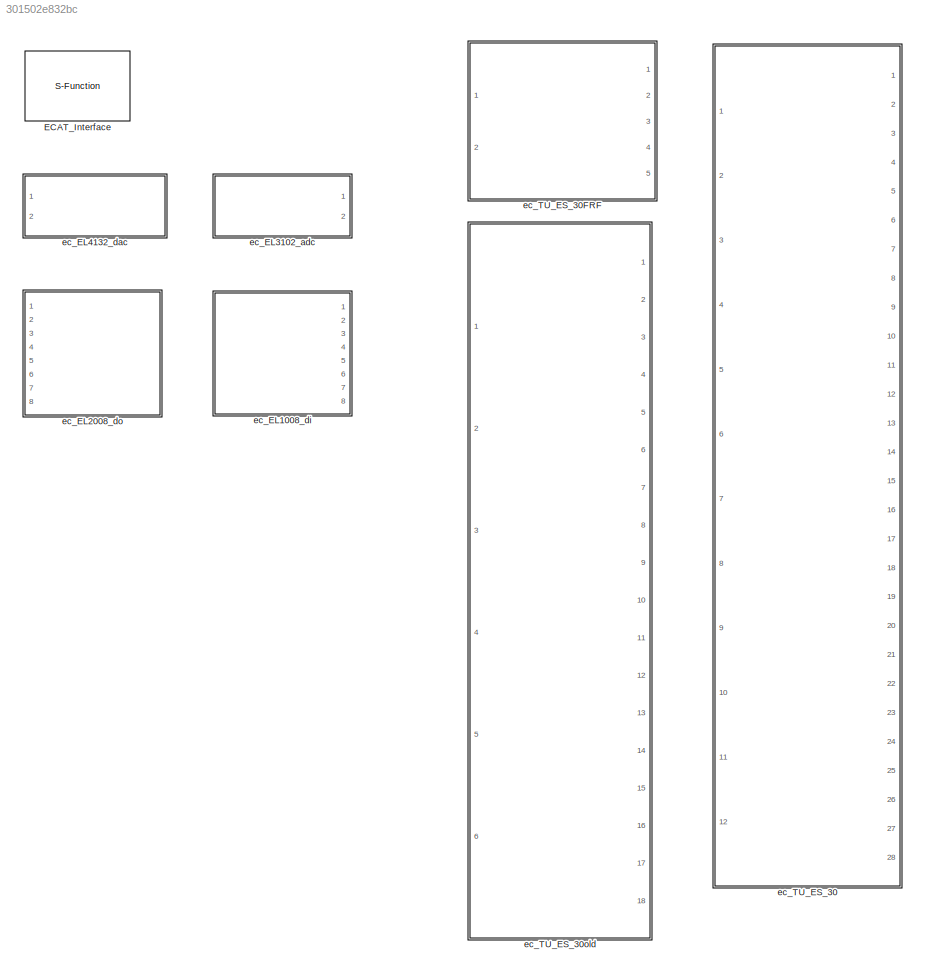
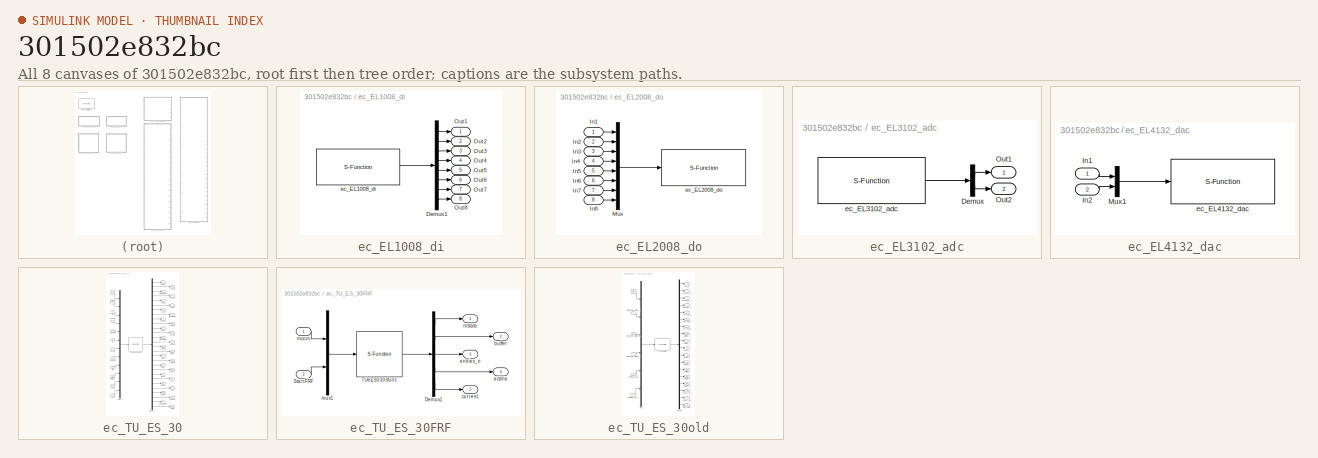
[diagram: thumbnail index - all 8 canvases of the model, root first then tree order]
MODEL slx_301502e832bc
KIND library
CONFIG AbsTol = auto
CONFIG EnableMultiTasking = on
CONFIG FixedStep = auto
CONFIG MaxStep = auto
CONFIG MinStep = auto
CONFIG RelTol = 1e-3
CONFIG SampleTimeConstraint = Unconstrained
CONFIG Solver = ode45
CONFIG SolverName = ode45
CONFIG StartTime = 0.0
CONFIG StopTime = 10.0
BLOCK [S-Function] ECAT_Interface
  EnableBusSupport = off
  FunctionName = ECAT_Interface
  Parameters = IFINTERFACE,TS
  Ports = [0, 1]
  Priority = 0
  SFcnIsStateOwnerBlock = off
  SFunctionDeploymentMode = off
  StopFcn = t_ = timer('Name','DLL_Unload_timer',...\n            'ExecutionMode','singleShot',...\n            'StartDelay',2,...\n            'StopFcn','try;delete(t_);clear(''t_'');catch;disp(''Unloading DLL Failed!'');end;',...\n            'TimerFcn','clear mex;'); \nstart(t_);
BLOCK [SubSystem] ec_EL1008_di
  Ports = [0, 8]
  RequestExecContextInheritance = off
  Variant = off
BLOCK [Demux] ec_EL1008_di/Demux1
  DisplayOption = bar
  Outputs = 8
  Ports = [1, 8]
BLOCK [Outport] ec_EL1008_di/Out1
  IconDisplay = Port number
BLOCK [Outport] ec_EL1008_di/Out2
  IconDisplay = Port number
  Port = 2
BLOCK [Outport] ec_EL1008_di/Out3
  IconDisplay = Port number
  Port = 3
BLOCK [Outport] ec_EL1008_di/Out4
  IconDisplay = Port number
  Port = 4
BLOCK [Outport] ec_EL1008_di/Out5
  IconDisplay = Port number
  Port = 5
BLOCK [Outport] ec_EL1008_di/Out6
  IconDisplay = Port number
  Port = 6
BLOCK [Outport] ec_EL1008_di/Out7
  IconDisplay = Port number
  Port = 7
BLOCK [Outport] ec_EL1008_di/Out8
  IconDisplay = Port number
  Port = 8
BLOCK [S-Function] ec_EL1008_di/ec_EL1008_di
  EnableBusSupport = off
  FunctionName = ec_EL1008_di
  Parameters = LINKID
  Ports = [0, 1]
  Priority = 1
  SFcnIsStateOwnerBlock = off
  SFunctionDeploymentMode = off
BLOCK [SubSystem] ec_EL2008_do
  Ports = [8]
  RequestExecContextInheritance = off
  Variant = off
BLOCK [Inport] ec_EL2008_do/In1
  IconDisplay = Port number
BLOCK [Inport] ec_EL2008_do/In2
  IconDisplay = Port number
  Port = 2
BLOCK [Inport] ec_EL2008_do/In3
  IconDisplay = Port number
  Port = 3
BLOCK [Inport] ec_EL2008_do/In4
  IconDisplay = Port number
  Port = 4
BLOCK [Inport] ec_EL2008_do/In5
  IconDisplay = Port number
  Port = 5
BLOCK [Inport] ec_EL2008_do/In6
  IconDisplay = Port number
  Port = 6
BLOCK [Inport] ec_EL2008_do/In7
  IconDisplay = Port number
  Port = 7
BLOCK [Inport] ec_EL2008_do/In8
  IconDisplay = Port number
  Port = 8
BLOCK [Mux] ec_EL2008_do/Mux
  DisplayOption = bar
  Inputs = 8
  Ports = [8, 1]
BLOCK [S-Function] ec_EL2008_do/ec_EL2008_do
  EnableBusSupport = off
  FunctionName = ec_EL2008_do
  Parameters = LINKID
  Ports = [1]
  Priority = 1
  SFcnIsStateOwnerBlock = off
  SFunctionDeploymentMode = off
BLOCK [SubSystem] ec_EL3102_adc
  Ports = [0, 2]
  RequestExecContextInheritance = off
  Variant = off
BLOCK [Demux] ec_EL3102_adc/Demux
  DisplayOption = bar
  Outputs = 2
  Ports = [1, 2]
BLOCK [Outport] ec_EL3102_adc/Out1
  IconDisplay = Port number
BLOCK [Outport] ec_EL3102_adc/Out2
  IconDisplay = Port number
  Port = 2
BLOCK [S-Function] ec_EL3102_adc/ec_EL3102_adc
  EnableBusSupport = off
  FunctionName = ec_EL3102_adc
  Parameters = LINKID
  Ports = [0, 1]
  Priority = 1
  SFcnIsStateOwnerBlock = off
  SFunctionDeploymentMode = off
BLOCK [SubSystem] ec_EL4132_dac
  Ports = [2]
  RequestExecContextInheritance = off
  Variant = off
BLOCK [Inport] ec_EL4132_dac/In1
  IconDisplay = Port number
BLOCK [Inport] ec_EL4132_dac/In2
  IconDisplay = Port number
  Port = 2
BLOCK [Mux] ec_EL4132_dac/Mux1
  DisplayOption = bar
  Inputs = 2
  Ports = [2, 1]
BLOCK [S-Function] ec_EL4132_dac/ec_EL4132_dac
  EnableBusSupport = off
  FunctionName = ec_EL4132_dac
  Parameters = LINKID
  Ports = [1]
  Priority = 1
  SFcnIsStateOwnerBlock = off
  SFunctionDeploymentMode = off
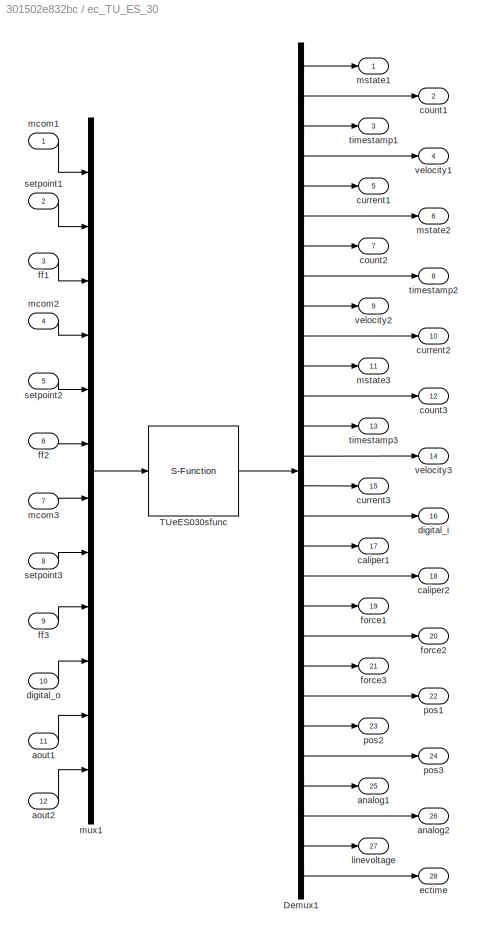
BLOCK [SubSystem] ec_TU_ES_30
  AncestorBlock = SERGIO_Lib/EtherCAT Blocks/ec_TU_ES_30
  Ports = [12, 28]
  RequestExecContextInheritance = off
  Variant = off
BLOCK [Demux] ec_TU_ES_30/Demux1
  DisplayOption = bar
  Outputs = 28
  Ports = [1, 28]
BLOCK [S-Function] ec_TU_ES_30/TUeES030sfunc
  EnableBusSupport = off
  FunctionName = ec_TU_ES_030
  Parameters = link_id, slave_num, resistance, kv,pgain,igain,ilimit,encdir,encres,czero
  Ports = [1, 1]
  SFcnIsStateOwnerBlock = off
  SFunctionDeploymentMode = off
BLOCK [Outport] ec_TU_ES_30/analog1
  IconDisplay = Port number
  Port = 25
BLOCK [Outport] ec_TU_ES_30/analog2
  IconDisplay = Port number
  Port = 26
BLOCK [Inport] ec_TU_ES_30/aout1
  IconDisplay = Port number
  Port = 11
BLOCK [Inport] ec_TU_ES_30/aout2
  IconDisplay = Port number
  Port = 12
BLOCK [Outport] ec_TU_ES_30/caliper1
  IconDisplay = Port number
  Port = 17
BLOCK [Outport] ec_TU_ES_30/caliper2
  IconDisplay = Port number
  Port = 18
BLOCK [Outport] ec_TU_ES_30/count1
  IconDisplay = Port number
  Port = 2
BLOCK [Outport] ec_TU_ES_30/count2
  IconDisplay = Port number
  Port = 7
BLOCK [Outport] ec_TU_ES_30/count3
  IconDisplay = Port number
  Port = 12
BLOCK [Outport] ec_TU_ES_30/current1
  IconDisplay = Port number
  Port = 5
BLOCK [Outport] ec_TU_ES_30/current2
  IconDisplay = Port number
  Port = 10
BLOCK [Outport] ec_TU_ES_30/current3
  IconDisplay = Port number
  Port = 15
BLOCK [Outport] ec_TU_ES_30/digital_i
  IconDisplay = Port number
  Port = 16
BLOCK [Inport] ec_TU_ES_30/digital_o
  IconDisplay = Port number
  Port = 10
BLOCK [Outport] ec_TU_ES_30/ectime
  IconDisplay = Port number
  Port = 28
BLOCK [Inport] ec_TU_ES_30/ff1
  IconDisplay = Port number
  Port = 3
BLOCK [Inport] ec_TU_ES_30/ff2
  IconDisplay = Port number
  Port = 6
BLOCK [Inport] ec_TU_ES_30/ff3
  IconDisplay = Port number
  Port = 9
BLOCK [Outport] ec_TU_ES_30/force1
  IconDisplay = Port number
  Port = 19
BLOCK [Outport] ec_TU_ES_30/force2
  IconDisplay = Port number
  Port = 20
BLOCK [Outport] ec_TU_ES_30/force3
  IconDisplay = Port number
  Port = 21
BLOCK [Outport] ec_TU_ES_30/linevoltage
  IconDisplay = Port number
  Port = 27
BLOCK [Inport] ec_TU_ES_30/mcom1
  IconDisplay = Port number
BLOCK [Inport] ec_TU_ES_30/mcom2
  IconDisplay = Port number
  Port = 4
BLOCK [Inport] ec_TU_ES_30/mcom3
  IconDisplay = Port number
  Port = 7
BLOCK [Outport] ec_TU_ES_30/mstate1
  IconDisplay = Port number
BLOCK [Outport] ec_TU_ES_30/mstate2
  IconDisplay = Port number
  Port = 6
BLOCK [Outport] ec_TU_ES_30/mstate3
  IconDisplay = Port number
  Port = 11
BLOCK [Mux] ec_TU_ES_30/mux1
  DisplayOption = bar
  Inputs = 12
  Ports = [12, 1]
BLOCK [Outport] ec_TU_ES_30/pos1
  IconDisplay = Port number
  Port = 22
BLOCK [Outport] ec_TU_ES_30/pos2
  IconDisplay = Port number
  Port = 23
BLOCK [Outport] ec_TU_ES_30/pos3
  IconDisplay = Port number
  Port = 24
BLOCK [Inport] ec_TU_ES_30/setpoint1
  IconDisplay = Port number
  Port = 2
BLOCK [Inport] ec_TU_ES_30/setpoint2
  IconDisplay = Port number
  Port = 5
BLOCK [Inport] ec_TU_ES_30/setpoint3
  IconDisplay = Port number
  Port = 8
BLOCK [Outport] ec_TU_ES_30/timestamp1
  IconDisplay = Port number
  Port = 3
BLOCK [Outport] ec_TU_ES_30/timestamp2
  IconDisplay = Port number
  Port = 8
BLOCK [Outport] ec_TU_ES_30/timestamp3
  IconDisplay = Port number
  Port = 13
BLOCK [Outport] ec_TU_ES_30/velocity1
  IconDisplay = Port number
  Port = 4
BLOCK [Outport] ec_TU_ES_30/velocity2
  IconDisplay = Port number
  Port = 9
BLOCK [Outport] ec_TU_ES_30/velocity3
  IconDisplay = Port number
  Port = 14
BLOCK [SubSystem] ec_TU_ES_30FRF
  AncestorBlock = SERGIO_Lib/EtherCAT Blocks/ec_TU_ES_30FRF
  Ports = [2, 5]
  RequestExecContextInheritance = off
  Variant = off
BLOCK [Demux] ec_TU_ES_30FRF/Demux1
  DisplayOption = bar
  Outputs = [1 1 1 1 22]
  Ports = [1, 5]
BLOCK [Inport] ec_TU_ES_30FRF/Start FRF
  IconDisplay = Port number
  Port = 2
BLOCK [S-Function] ec_TU_ES_30FRF/TUeES030sfunc
  EnableBusSupport = off
  FunctionName = ec_TU_ES_030FRF
  Parameters = link_id, slave_num, resistance, kv,pgain,igain,ilimit,encdir,encres,czero, setpts,numsets
  Ports = [1, 1]
  SFcnIsStateOwnerBlock = off
  SFunctionDeploymentMode = off
BLOCK [Outport] ec_TU_ES_30FRF/buffer
  IconDisplay = Port number
  Port = 2
BLOCK [Outport] ec_TU_ES_30FRF/current
  IconDisplay = Port number
  Port = 5
BLOCK [Outport] ec_TU_ES_30FRF/ectime
  IconDisplay = Port number
  Port = 4
BLOCK [Outport] ec_TU_ES_30FRF/entries_o
  IconDisplay = Port number
  Port = 3
BLOCK [Inport] ec_TU_ES_30FRF/mcom
  IconDisplay = Port number
BLOCK [Outport] ec_TU_ES_30FRF/mstate
  IconDisplay = Port number
BLOCK [Mux] ec_TU_ES_30FRF/mux1
  DisplayOption = bar
  Inputs = 2
  Ports = [2, 1]
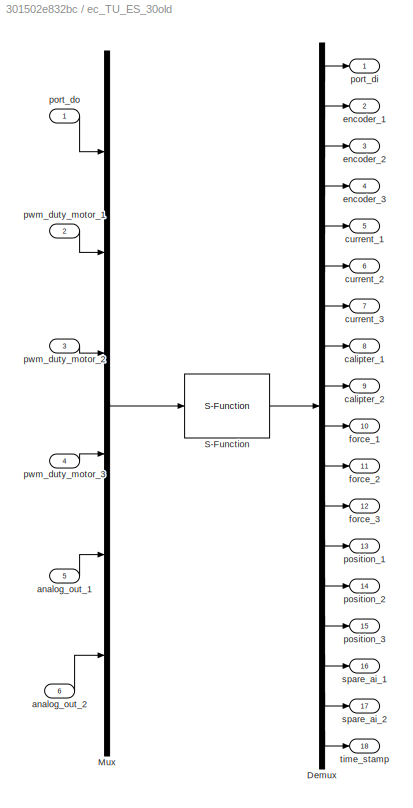
BLOCK [SubSystem] ec_TU_ES_30old
  AncestorBlock = SERGIO_Lib/EtherCAT Blocks/ec_TU_ES_030old
  Ports = [6, 18]
  RequestExecContextInheritance = off
  Variant = off
BLOCK [Demux] ec_TU_ES_30old/Demux
  DisplayOption = bar
  Outputs = 18
  Ports = [1, 18]
BLOCK [Mux] ec_TU_ES_30old/Mux
  DisplayOption = bar
  Inputs = 6
  Ports = [6, 1]
BLOCK [S-Function] ec_TU_ES_30old/S-Function
  EnableBusSupport = off
  FunctionName = ec_TU_ES_030old
  Parameters = link_id
  Ports = [1, 1]
  SFcnIsStateOwnerBlock = off
  SFunctionDeploymentMode = off
BLOCK [Inport] ec_TU_ES_30old/analog_out_1
  IconDisplay = Port number
  Port = 5
BLOCK [Inport] ec_TU_ES_30old/analog_out_2
  IconDisplay = Port number
  Port = 6
BLOCK [Outport] ec_TU_ES_30old/calipter_1
  IconDisplay = Port number
  Port = 8
BLOCK [Outport] ec_TU_ES_30old/calipter_2
  IconDisplay = Port number
  Port = 9
BLOCK [Outport] ec_TU_ES_30old/current_1
  IconDisplay = Port number
  Port = 5
BLOCK [Outport] ec_TU_ES_30old/current_2
  IconDisplay = Port number
  Port = 6
BLOCK [Outport] ec_TU_ES_30old/current_3
  IconDisplay = Port number
  Port = 7
BLOCK [Outport] ec_TU_ES_30old/encoder_1
  IconDisplay = Port number
  Port = 2
BLOCK [Outport] ec_TU_ES_30old/encoder_2
  IconDisplay = Port number
  Port = 3
BLOCK [Outport] ec_TU_ES_30old/encoder_3
  IconDisplay = Port number
  Port = 4
BLOCK [Outport] ec_TU_ES_30old/force_1
  IconDisplay = Port number
  Port = 10
BLOCK [Outport] ec_TU_ES_30old/force_2
  IconDisplay = Port number
  Port = 11
BLOCK [Outport] ec_TU_ES_30old/force_3
  IconDisplay = Port number
  Port = 12
BLOCK [Outport] ec_TU_ES_30old/port_di
  IconDisplay = Port number
BLOCK [Inport] ec_TU_ES_30old/port_do
  IconDisplay = Port number
BLOCK [Outport] ec_TU_ES_30old/position_1
  IconDisplay = Port number
  Port = 13
BLOCK [Outport] ec_TU_ES_30old/position_2
  IconDisplay = Port number
  Port = 14
BLOCK [Outport] ec_TU_ES_30old/position_3
  IconDisplay = Port number
  Port = 15
BLOCK [Inport] ec_TU_ES_30old/pwm_duty_motor_1
  IconDisplay = Port number
  Port = 2
BLOCK [Inport] ec_TU_ES_30old/pwm_duty_motor_2
  IconDisplay = Port number
  Port = 3
BLOCK [Inport] ec_TU_ES_30old/pwm_duty_motor_3
  IconDisplay = Port number
  Port = 4
BLOCK [Outport] ec_TU_ES_30old/spare_ai_1
  IconDisplay = Port number
  Port = 16
BLOCK [Outport] ec_TU_ES_30old/spare_ai_2
  IconDisplay = Port number
  Port = 17
BLOCK [Outport] ec_TU_ES_30old/time_stamp
  IconDisplay = Port number
  Port = 18
LINE ec_EL1008_di/Demux1:1 -> ec_EL1008_di/Out1:1
LINE ec_EL1008_di/Demux1:2 -> ec_EL1008_di/Out2:1
LINE ec_EL1008_di/Demux1:3 -> ec_EL1008_di/Out3:1
LINE ec_EL1008_di/Demux1:4 -> ec_EL1008_di/Out4:1
LINE ec_EL1008_di/Demux1:5 -> ec_EL1008_di/Out5:1
LINE ec_EL1008_di/Demux1:6 -> ec_EL1008_di/Out6:1
LINE ec_EL1008_di/Demux1:7 -> ec_EL1008_di/Out7:1
LINE ec_EL1008_di/Demux1:8 -> ec_EL1008_di/Out8:1
LINE ec_EL1008_di/ec_EL1008_di:1 -> ec_EL1008_di/Demux1:1
LINE ec_EL2008_do/In1:1 -> ec_EL2008_do/Mux:1
LINE ec_EL2008_do/In2:1 -> ec_EL2008_do/Mux:2
LINE ec_EL2008_do/In3:1 -> ec_EL2008_do/Mux:3
LINE ec_EL2008_do/In4:1 -> ec_EL2008_do/Mux:4
LINE ec_EL2008_do/In5:1 -> ec_EL2008_do/Mux:5
LINE ec_EL2008_do/In6:1 -> ec_EL2008_do/Mux:6
LINE ec_EL2008_do/In7:1 -> ec_EL2008_do/Mux:7
LINE ec_EL2008_do/In8:1 -> ec_EL2008_do/Mux:8
LINE ec_EL2008_do/Mux:1 -> ec_EL2008_do/ec_EL2008_do:1
LINE ec_EL3102_adc/Demux:1 -> ec_EL3102_adc/Out1:1
LINE ec_EL3102_adc/Demux:2 -> ec_EL3102_adc/Out2:1
LINE ec_EL3102_adc/ec_EL3102_adc:1 -> ec_EL3102_adc/Demux:1
LINE ec_EL4132_dac/In1:1 -> ec_EL4132_dac/Mux1:1
LINE ec_EL4132_dac/In2:1 -> ec_EL4132_dac/Mux1:2
LINE ec_EL4132_dac/Mux1:1 -> ec_EL4132_dac/ec_EL4132_dac:1
